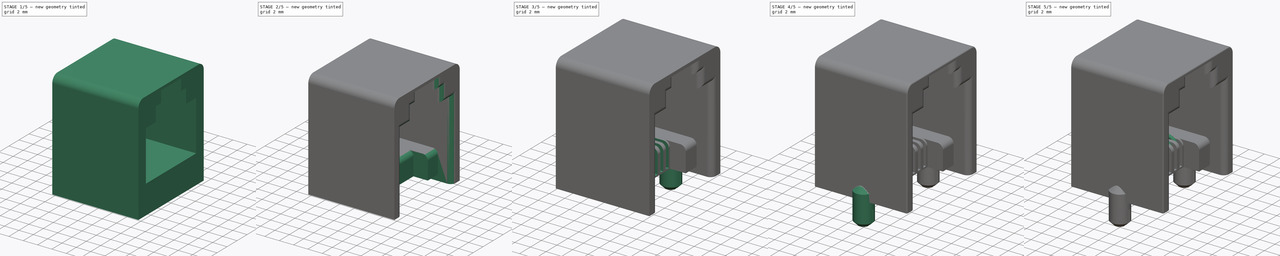
[diagram: build sequence overview — one tinted view per stage of 5, left to right]
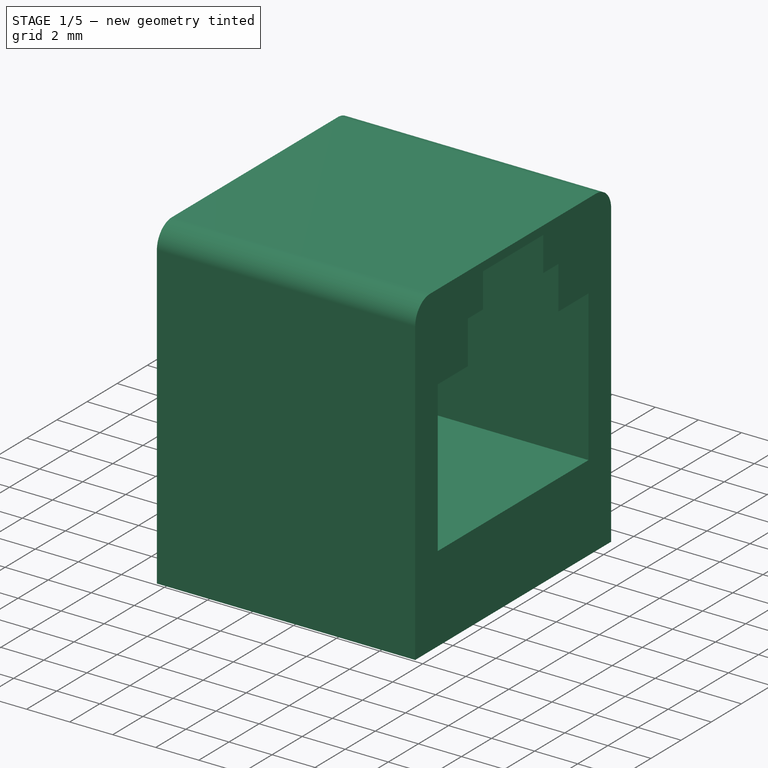
[diagram: stage 1 of 5 — iso view after this stage's code; geometry added in this stage tinted green]
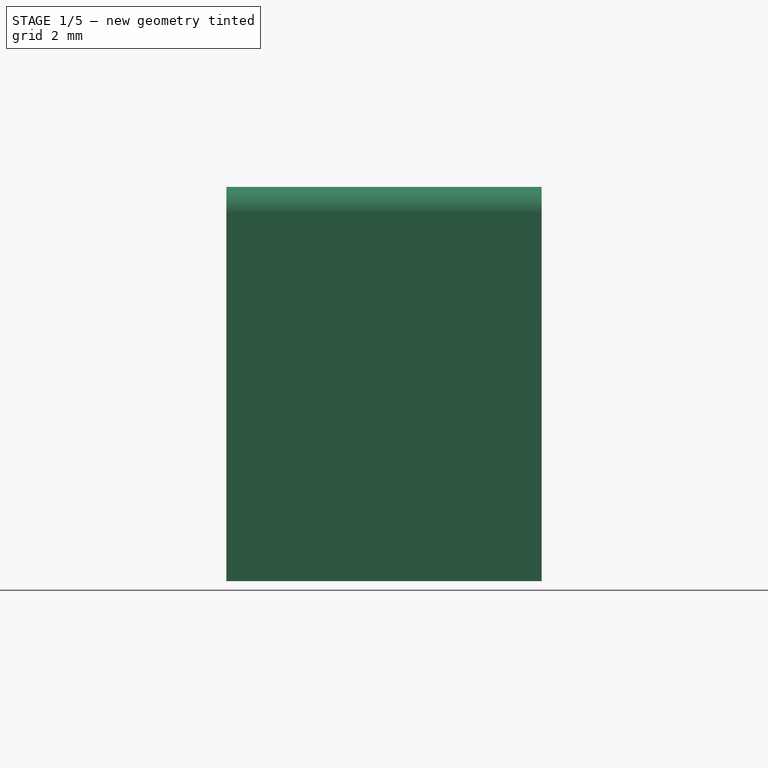
[diagram: stage 1 of 5 — front view after this stage's code; geometry added in this stage tinted green]
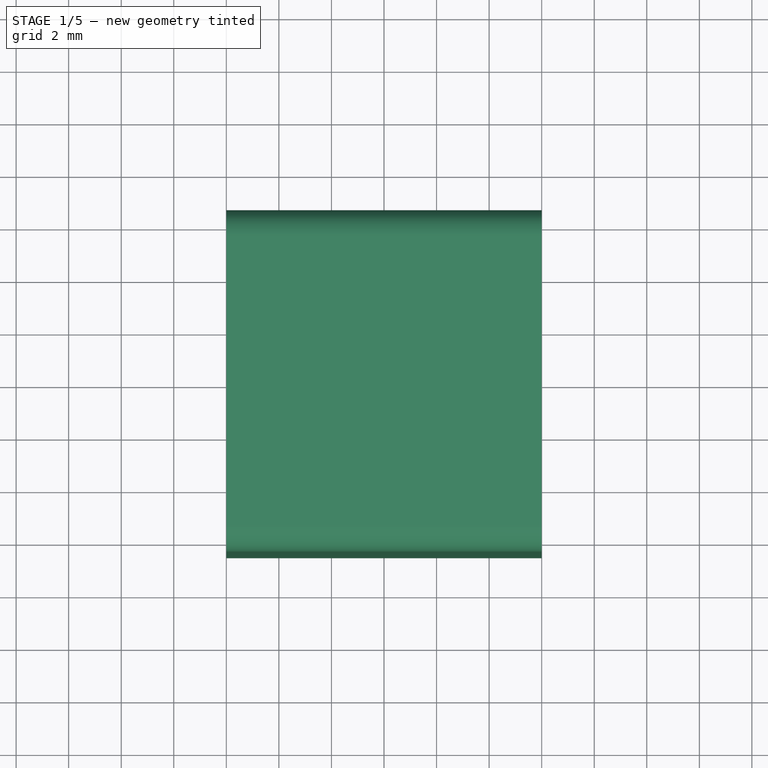
[diagram: stage 1 of 5 — top view after this stage's code; geometry added in this stage tinted green]
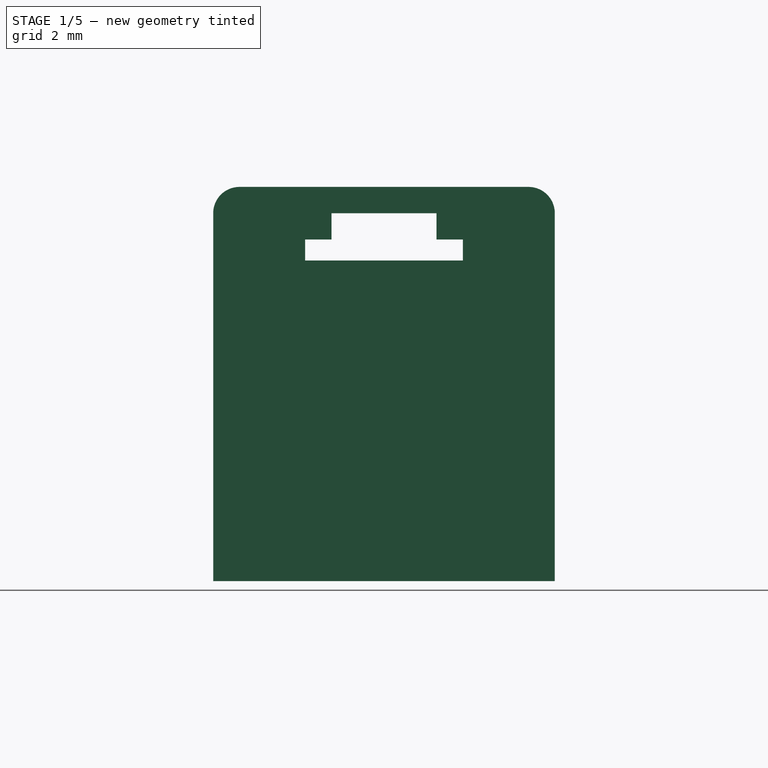
[diagram: stage 1 of 5 — right view after this stage's code; geometry added in this stage tinted green]
FCSTD DOCUMENT  (FreeCAD 0.16R6712 (Git))
Label: rj11
License: All rights reserved
LicenseURL: http://en.wikipedia.org/wiki/All_rights_reserved
objects: Sketcher::SketchObject×9, PartDesign::Pocket×7, Part::FeaturePython×4, Part::Fillet×2, Part::Cylinder×2, Part::Fuse×2, Part::Box×1, Part::Chamfer×1, Part::Sweep×1, PartDesign::Fillet×1
note: 37 computed .brp shape members not serialized (recipe doc carries the construction recipe); baked Part::Feature solids carry a one-line shape summary decoded from their .brp

FEATURE [Part::Box] Box  label="Cubo"
  Height = 15
  Length = 12
  Placement = pos=(-6,-6.5,0) rot=(0,0,1;0rad)
  Width = 13
FEATURE [Part::Fillet] Fillet
  Base = -> Box
  Edges = 2 edges r=1: [Edge10,Edge12]
FEATURE [Sketcher::SketchObject] Sketch001
  ExternalGeometry = -> [Fillet]
  Placement = pos=(6,0,0) rot=(0.57735,0.57735,0.57735;2.0944rad)
  Support = -> Fillet [Face8]
  sketch-geometry (12):
    g0: LineSegment StartX=-5 StartY=4 StartZ=0 EndX=-5 EndY=11 EndZ=0
    g1: LineSegment StartX=-5 StartY=11 StartZ=0 EndX=-3 EndY=11 EndZ=0
    g2: LineSegment StartX=-3 StartY=11 StartZ=0 EndX=-3 EndY=13 EndZ=0
    g3: LineSegment StartX=-3 StartY=13 StartZ=0 EndX=-2 EndY=13 EndZ=0
    g4: LineSegment StartX=-2 StartY=13 StartZ=0 EndX=-2 EndY=14.6 EndZ=0
    g5: LineSegment StartX=-2 StartY=14.6 StartZ=0 EndX=2 EndY=14.6 EndZ=0
    g6: LineSegment StartX=2 StartY=14.6 StartZ=0 EndX=2 EndY=13 EndZ=0
    g7: LineSegment StartX=2 StartY=13 StartZ=0 EndX=3 EndY=13 EndZ=0
    g8: LineSegment StartX=3 StartY=13 StartZ=0 EndX=3 EndY=11 EndZ=0
    g9: LineSegment StartX=3 StartY=11 StartZ=0 EndX=5 EndY=11 EndZ=0
    g10: LineSegment StartX=5 StartY=11 StartZ=0 EndX=5 EndY=4 EndZ=0
    g11: LineSegment StartX=5 StartY=4 StartZ=0 EndX=-5 EndY=4 EndZ=0
  constraints (34):
    c: Vertical(g0)
    c: Coincident(g0,g1)
    c: Horizontal(g1)
    c: Coincident(g1,g2)
    c: Vertical(g2)
    c: Coincident(g2,g3)
    c: Horizontal(g3)
    c: Coincident(g3,g4)
    c: Vertical(g4)
    c: Coincident(g4,g5)
    c: Horizontal(g5)
    c: Coincident(g5,g6)
    c: Vertical(g6)
    c: Coincident(g6,g7)
    c: Horizontal(g7)
    c: Coincident(g7,g8)
    c: Vertical(g8)
    c: Coincident(g8,g9)
    c: Horizontal(g9)
    c: Coincident(g9,g10)
    c: Vertical(g10)
    c: Coincident(g10,g11)
    c: Coincident(g11,g0)
    c: Horizontal(g11)
    c: Symmetric(g3,g6,g-2)
    c: Symmetric(g1,g8,g-2)
    c: Symmetric(g0,g10,g-2)
    c: DistanceX(g5,g5) = 4
    c: DistanceY(g5,g-3) = 0.4
    c: DistanceY(g6,g-3) = 2
    c: DistanceX(g2,g7) = 6
    c: DistanceY(g8,g-3) = 4
    c: DistanceX(g11,g11) = 10
    c: DistanceY(g10,g-3) = 11
FEATURE [PartDesign::Pocket] Pocket001
  Length = 11
  Sketch = -> Sketch001
  Type = 0
FEATURE [Sketcher::SketchObject] Sketch002
  ExternalGeometry = -> [Pocket001]
  Placement = pos=(-6,0,0) rot=(0.57735,-0.57735,-0.57735;2.0944rad)
  Support = -> Pocket001 [Face1]
  sketch-geometry (4):
    g0: LineSegment StartX=-5 StartY=14 StartZ=0 EndX=5 EndY=14 EndZ=0
    g1: LineSegment StartX=5 StartY=14 StartZ=0 EndX=5 EndY=12.2 EndZ=0
    g2: LineSegment StartX=5 StartY=12.2 StartZ=0 EndX=-5 EndY=12.2 EndZ=0
    g3: LineSegment StartX=-5 StartY=12.2 StartZ=0 EndX=-5 EndY=14 EndZ=0
  constraints (12):
    c: Coincident(g0,g1)
    c: Coincident(g1,g2)
    c: Coincident(g2,g3)
    c: Coincident(g3,g0)
    c: Horizontal(g0)
    c: Horizontal(g2)
    c: Vertical(g1)
    c: Vertical(g3)
    c: DistanceY(g0,g-3) = 1
    c: DistanceY(g1,g1) = 1.8
    c: Symmetric(g2,g1,g-2)
    c: DistanceX(g0,g0) = 10
FEATURE [PartDesign::Pocket] Pocket002
  Length = 9
  Sketch = -> Sketch002
  Type = 0
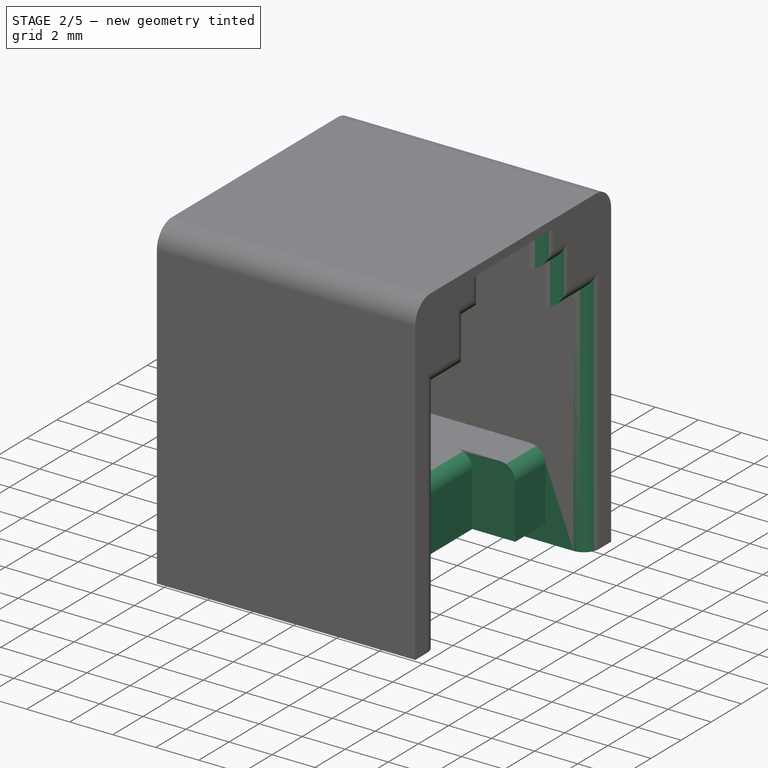
[diagram: stage 2 of 5 — iso view after this stage's code; geometry added in this stage tinted green]
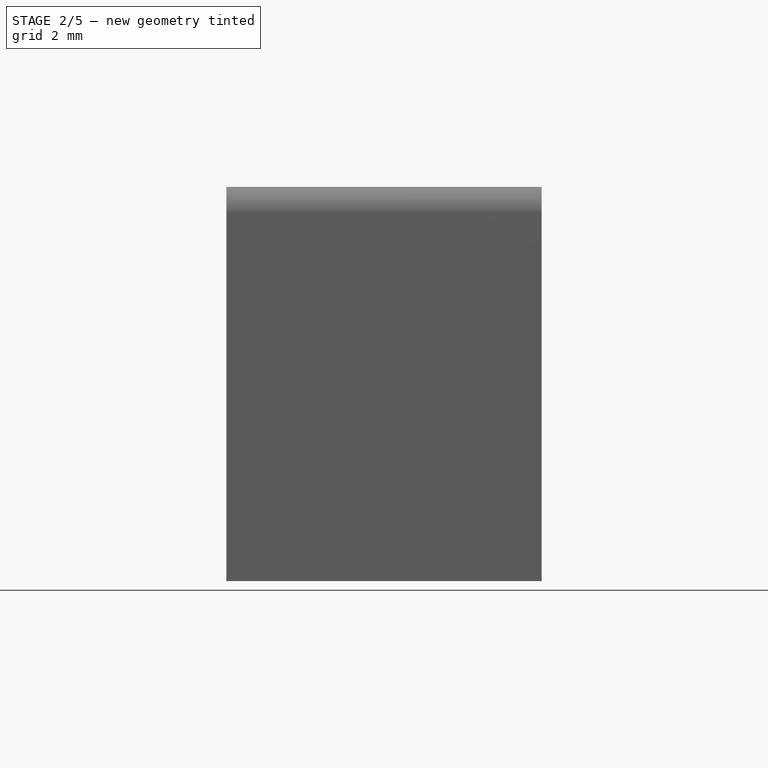
[diagram: stage 2 of 5 — front view after this stage's code; geometry added in this stage tinted green]
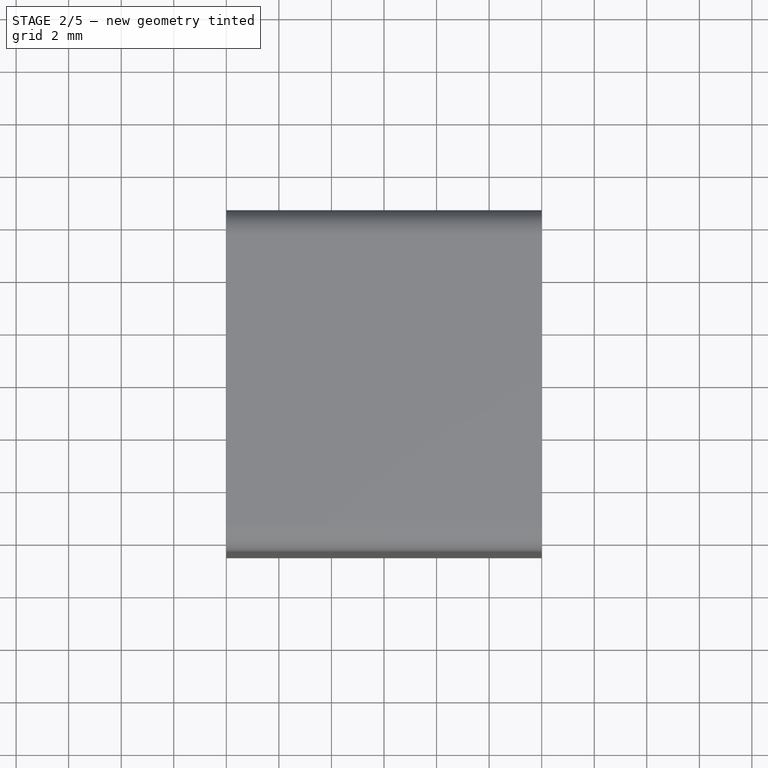
[diagram: stage 2 of 5 — top view after this stage's code; geometry added in this stage tinted green]
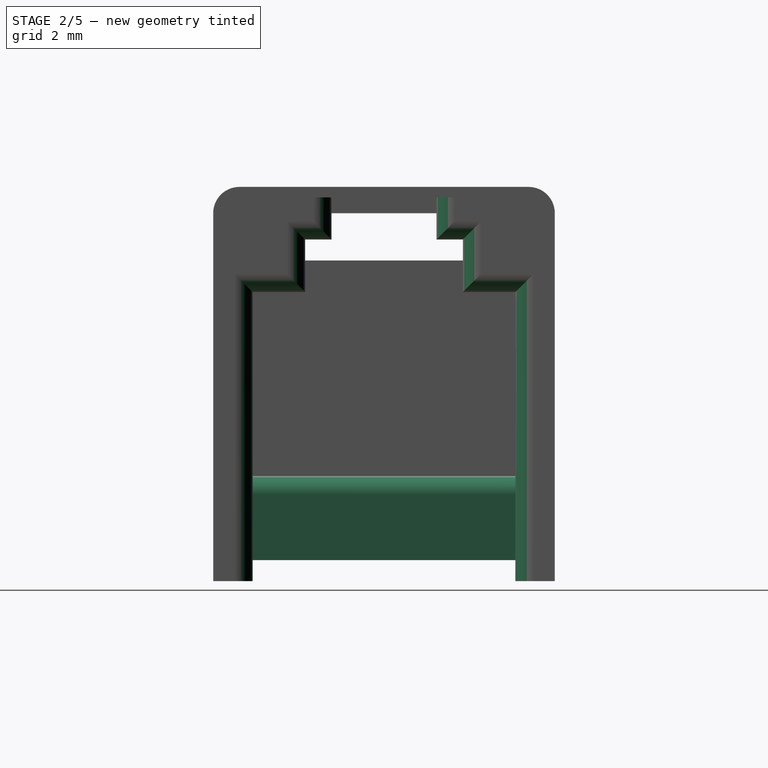
[diagram: stage 2 of 5 — right view after this stage's code; geometry added in this stage tinted green]
FEATURE [Sketcher::SketchObject] Sketch003
  ExternalGeometry = -> [Pocket002]
  Placement = pos=(6,0,0) rot=(0.57735,0.57735,0.57735;2.0944rad)
  Support = -> Pocket002 [Face12]
  sketch-geometry (4):
    g0: LineSegment StartX=-5 StartY=0 StartZ=0 EndX=5 EndY=0 EndZ=0
    g1: LineSegment StartX=5 StartY=0 StartZ=0 EndX=5 EndY=4 EndZ=0
    g2: LineSegment StartX=5 StartY=4 StartZ=0 EndX=-5 EndY=4 EndZ=0
    g3: LineSegment StartX=-5 StartY=4 StartZ=0 EndX=-5 EndY=0 EndZ=0
  constraints (11):
    c: Coincident(g0,g1)
    c: Coincident(g1,g2)
    c: Coincident(g2,g3)
    c: Coincident(g3,g0)
    c: Horizontal(g0)
    c: Horizontal(g2)
    c: Vertical(g1)
    c: Vertical(g3)
    c: PointOnObject(g0,g-1)
    c: Coincident(g1,g-3)
    c: Coincident(g2,g-3)
FEATURE [PartDesign::Pocket] Pocket003
  Length = 2
  Sketch = -> Sketch003
  Type = 0
FEATURE [Sketcher::SketchObject] Sketch004
  ExternalGeometry = -> [Pocket003]
  Placement = pos=(4,0,0) rot=(0.57735,0.57735,0.57735;2.0944rad)
  Support = -> Pocket003 [Face13]
  sketch-geometry (4):
    g0: LineSegment StartX=-3 StartY=4 StartZ=0 EndX=3 EndY=4 EndZ=0
    g1: LineSegment StartX=3 StartY=4 StartZ=0 EndX=3 EndY=0 EndZ=0
    g2: LineSegment StartX=3 StartY=0 StartZ=0 EndX=-3 EndY=0 EndZ=0
    g3: LineSegment StartX=-3 StartY=0 StartZ=0 EndX=-3 EndY=4 EndZ=0
  constraints (12):
    c: Coincident(g0,g1)
    c: Coincident(g1,g2)
    c: Coincident(g2,g3)
    c: Coincident(g3,g0)
    c: Horizontal(g0)
    c: Horizontal(g2)
    c: Vertical(g1)
    c: Vertical(g3)
    c: PointOnObject(g0,g-3)
    c: PointOnObject(g1,g-1)
    c: DistanceX(g2,g2) = 6
    c: Symmetric(g2,g1,g-2)
FEATURE [PartDesign::Pocket] Pocket004
  Length = 2
  Sketch = -> Sketch004
  Type = 0
FEATURE [Part::Fillet] Fillet001
  Base = -> Pocket004
  Edges = 13 edges r=0.7: [Edge47,Edge48,Edge49,Edge50,Edge51,Edge53,Edge54,Edge55,Edge56,Edge57,Edge62,Edge66,Edge70]
FEATURE [Sketcher::SketchObject] Sketch005
  ExternalGeometry = -> [Fillet001]
  Placement = pos=(4,0,0) rot=(0.57735,0.57735,0.57735;2.0944rad)
  Support = -> Fillet001 [Face14]
  sketch-geometry (4):
    g0: LineSegment StartX=-5 StartY=0 StartZ=0 EndX=5 EndY=0 EndZ=0
    g1: LineSegment StartX=5 StartY=0 StartZ=0 EndX=5 EndY=0.8 EndZ=0
    g2: LineSegment StartX=5 StartY=0.8 StartZ=0 EndX=-5 EndY=0.8 EndZ=0
    g3: LineSegment StartX=-5 StartY=0.8 StartZ=0 EndX=-5 EndY=0 EndZ=0
  constraints (11):
    c: Coincident(g0,g1)
    c: Coincident(g1,g2)
    c: Coincident(g2,g3)
    c: Coincident(g3,g0)
    c: Horizontal(g0)
    c: Horizontal(g2)
    c: Vertical(g1)
    c: Vertical(g3)
    c: Coincident(g0,g-3)
    c: PointOnObject(g1,g-4)
    c: DistanceY(g0,g1) = 0.8
FEATURE [PartDesign::Pocket] Pocket005
  Length = 5
  Sketch = -> Sketch005
  Type = 1
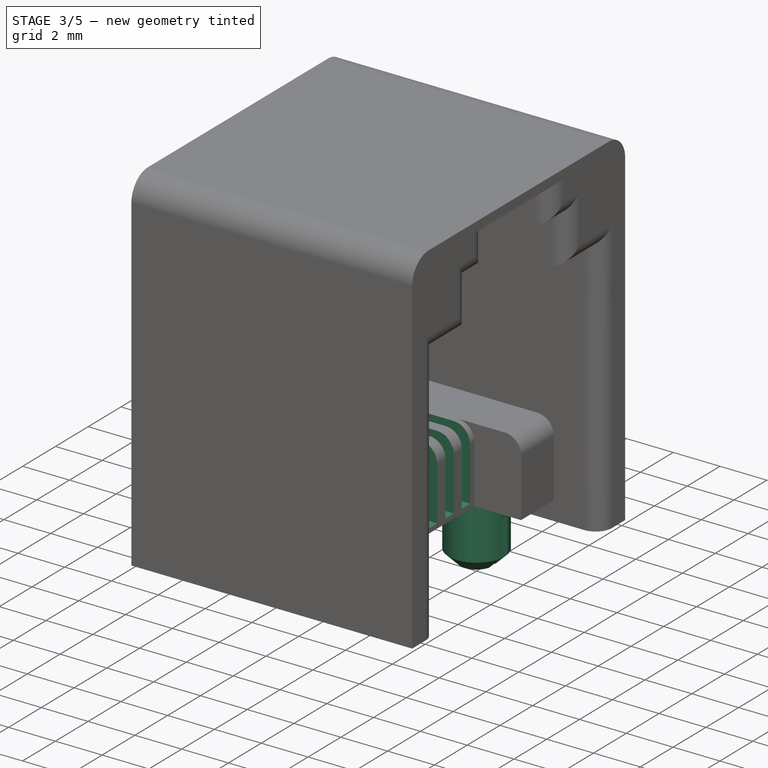
[diagram: stage 3 of 5 — iso view after this stage's code; geometry added in this stage tinted green]
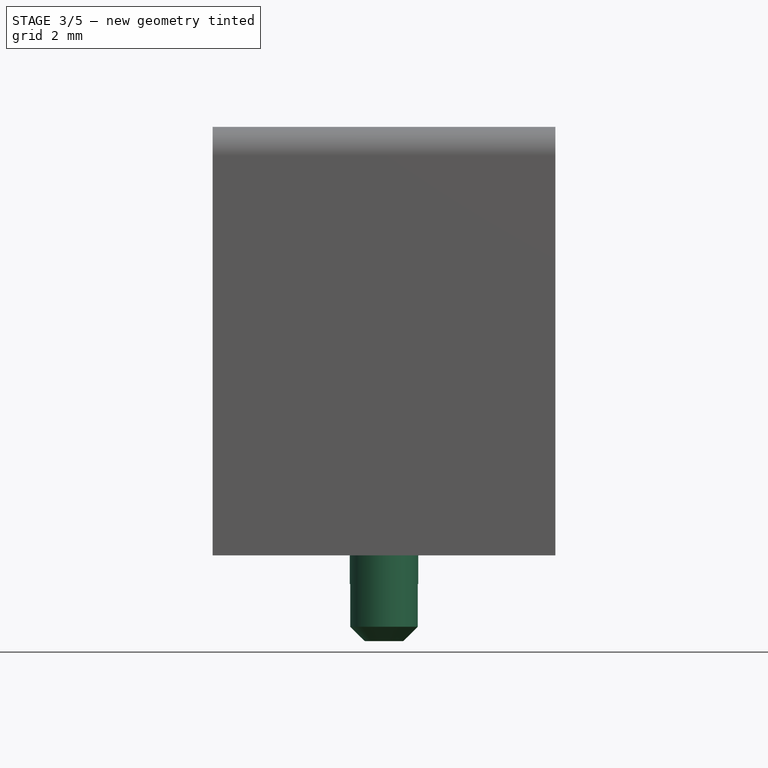
[diagram: stage 3 of 5 — front view after this stage's code; geometry added in this stage tinted green]
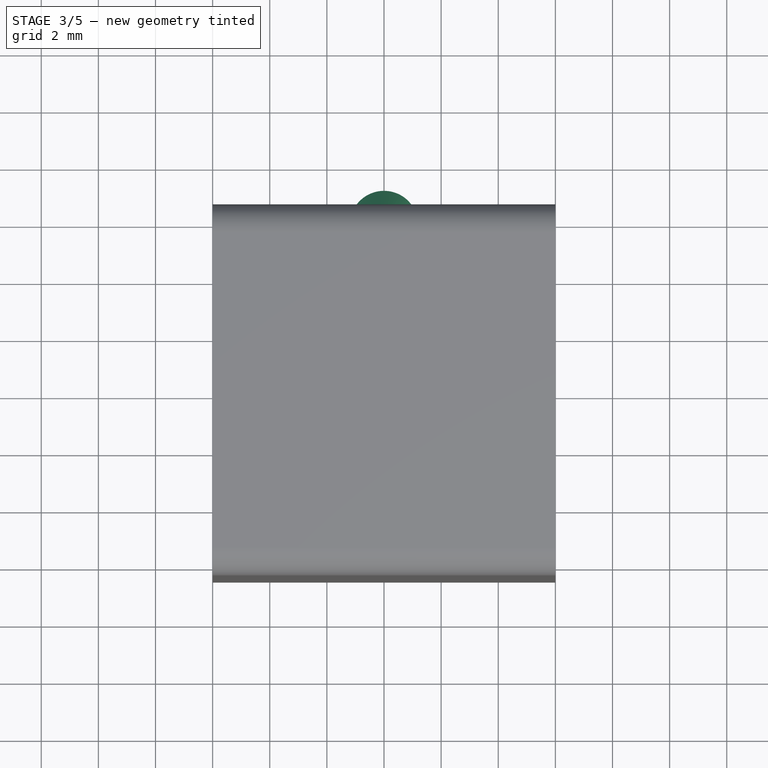
[diagram: stage 3 of 5 — top view after this stage's code; geometry added in this stage tinted green]
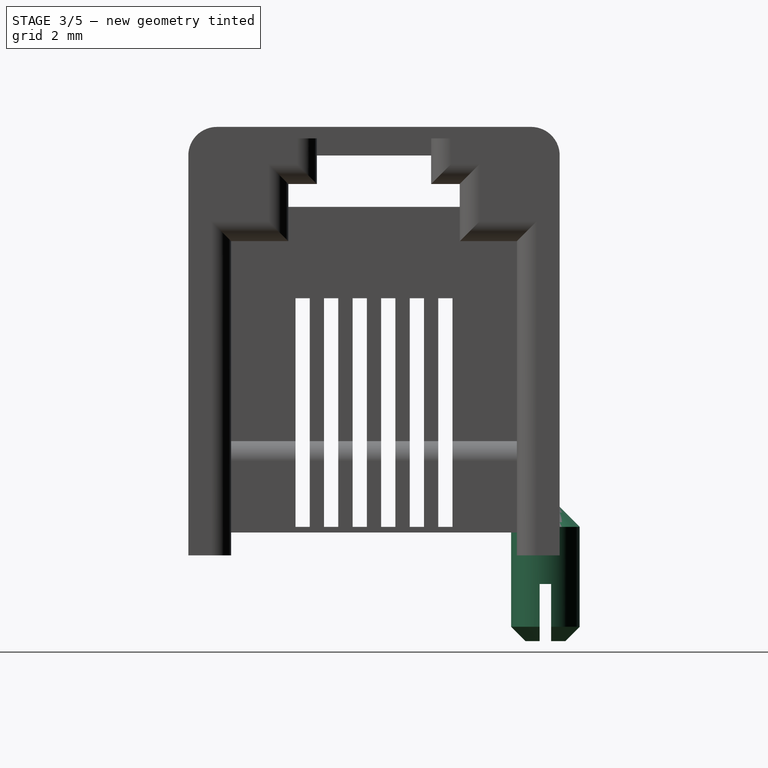
[diagram: stage 3 of 5 — right view after this stage's code; geometry added in this stage tinted green]
FEATURE [Part::Cylinder] Cylinder  label="Cilindro"
  Angle = 360
  Height = 5
  Placement = pos=(0,-6,-3) rot=(0,0,1;0rad)
  Radius = 1.2
FEATURE [Part::Chamfer] Chamfer
  Base = -> Cylinder
  Edges = 2 edges: [Edge1 r=1,Edge3 r=0.5]
FEATURE [Sketcher::SketchObject] Sketch
  ExternalGeometry = -> [Chamfer]
  Placement = pos=(0,0,-3) rot=(1,0,0;3.14159rad)
  Support = -> Chamfer [Face4]
  sketch-geometry (4):
    g0: ArcOfCircle CenterX=-2 CenterY=6 CenterZ=0 NormalX=0 NormalY=0 NormalZ=1 Radius=0.2 StartAngle=1.5708 EndAngle=4.71239
    g1: ArcOfCircle CenterX=2 CenterY=6 CenterZ=0 NormalX=0 NormalY=0 NormalZ=1 Radius=0.2 StartAngle=4.71239 EndAngle=7.85398
    g2: LineSegment StartX=-2 StartY=5.8 StartZ=0 EndX=2 EndY=5.8 EndZ=0
    g3: LineSegment StartX=-2 StartY=6.2 StartZ=0 EndX=2 EndY=6.2 EndZ=0
  constraints (9):
    c: Tangent(g0,g3) = 1.5708
    c: Tangent(g0,g2) = -1.5708
    c: Tangent(g2,g1) = -1.5708
    c: Tangent(g3,g1) = 1.5708
    c: Horizontal(g2)
    c: Equal(g0,g1)
    c: Symmetric(g0,g1,g-3)
    c: Radius(g0) = 0.2
    c: DistanceX(g3,g3) = 4
FEATURE [PartDesign::Pocket] Pocket
  Length = 2
  Sketch = -> Sketch
  Type = 0
FEATURE [Part::FeaturePython] Clone  label="Clone of Pocket"  # Draft clone (typed FeaturePython)
  Objects = -> [Pocket]
  Placement = pos=(0,12,0) rot=(0,0,1;0rad)
  Scale = (1,1,1)
FEATURE [Sketcher::SketchObject] Sketch006
  ExternalGeometry = -> [Pocket005]
  Placement = pos=(-6,0,0) rot=(0.57735,-0.57735,-0.57735;2.0944rad)
  Support = -> Pocket005 [Face6]
  sketch-geometry (29):
    g0: LineSegment StartX=-2.75 StartY=9 StartZ=0 EndX=-2.25 EndY=9 EndZ=0
    g1: LineSegment StartX=-2.25 StartY=9 StartZ=0 EndX=-2.25 EndY=1 EndZ=0
    g2: LineSegment StartX=-2.25 StartY=1 StartZ=0 EndX=-2.75 EndY=1 EndZ=0
    g3: LineSegment StartX=-2.75 StartY=1 StartZ=0 EndX=-2.75 EndY=9 EndZ=0
    g4: LineSegment StartX=-1.75 StartY=9 StartZ=0 EndX=-1.25 EndY=9 EndZ=0
    g5: LineSegment StartX=-1.25 StartY=9 StartZ=0 EndX=-1.25 EndY=1 EndZ=0
    g6: LineSegment StartX=-1.25 StartY=1 StartZ=0 EndX=-1.75 EndY=1 EndZ=0
    g7: LineSegment StartX=-1.75 StartY=1 StartZ=0 EndX=-1.75 EndY=9 EndZ=0
    g8: LineSegment StartX=-0.75 StartY=9 StartZ=0 EndX=-0.25 EndY=9 EndZ=0
    g9: LineSegment StartX=-0.25 StartY=9 StartZ=0 EndX=-0.25 EndY=1 EndZ=0
    g10: LineSegment StartX=-0.25 StartY=1 StartZ=0 EndX=-0.75 EndY=1 EndZ=0
    g11: LineSegment StartX=-0.75 StartY=1 StartZ=0 EndX=-0.75 EndY=9 EndZ=0
    g12: LineSegment StartX=0.25 StartY=9 StartZ=0 EndX=0.75 EndY=9 EndZ=0
    g13: LineSegment StartX=0.75 StartY=9 StartZ=0 EndX=0.75 EndY=1 EndZ=0
    g14: LineSegment StartX=0.75 StartY=1 StartZ=0 EndX=0.25 EndY=1 EndZ=0
    g15: LineSegment StartX=0.25 StartY=1 StartZ=0 EndX=0.25 EndY=9 EndZ=0
    g16: LineSegment StartX=1.25 StartY=9 StartZ=0 EndX=1.75 EndY=9 EndZ=0
    g17: LineSegment StartX=1.75 StartY=9 StartZ=0 EndX=1.75 EndY=1 EndZ=0
    g18: LineSegment StartX=1.75 StartY=1 StartZ=0 EndX=1.25 EndY=1 EndZ=0
    g19: LineSegment StartX=1.25 StartY=1 StartZ=0 EndX=1.25 EndY=9 EndZ=0
    g20: LineSegment StartX=2.25 StartY=9 StartZ=0 EndX=2.75 EndY=9 EndZ=0
    g21: LineSegment StartX=2.75 StartY=9 StartZ=0 EndX=2.75 EndY=1 EndZ=0
    g22: LineSegment StartX=2.75 StartY=1 StartZ=0 EndX=2.25 EndY=1 EndZ=0
    g23: LineSegment StartX=2.25 StartY=1 StartZ=0 EndX=2.25 EndY=9 EndZ=0
    g24: LineSegment [constr] StartX=-2.25 StartY=9 StartZ=0 EndX=-1.75 EndY=9 EndZ=0
    g25: LineSegment [constr] StartX=-1.25 StartY=9 StartZ=0 EndX=-0.75 EndY=9 EndZ=0
    g26: LineSegment [constr] StartX=-0.25 StartY=9 StartZ=0 EndX=0.25 EndY=9 EndZ=0
    g27: LineSegment [constr] StartX=0.75 StartY=9 StartZ=0 EndX=1.25 EndY=9 EndZ=0
    g28: LineSegment [constr] StartX=1.75 StartY=9 StartZ=0 EndX=2.25 EndY=9 EndZ=0
  constraints (82):
    c: Coincident(g0,g1)
    c: Coincident(g1,g2)
    c: Coincident(g2,g3)
    c: Coincident(g3,g0)
    c: Horizontal(g0)
    c: Horizontal(g2)
    c: Vertical(g1)
    c: Vertical(g3)
    c: Coincident(g4,g5)
    c: Coincident(g5,g6)
    c: Coincident(g6,g7)
    c: Coincident(g7,g4)
    c: Horizontal(g4)
    c: Horizontal(g6)
    c: Vertical(g5)
    c: Vertical(g7)
    c: Coincident(g8,g9)
    c: Coincident(g9,g10)
    c: Coincident(g10,g11)
    c: Coincident(g11,g8)
    c: Horizontal(g8)
    c: Horizontal(g10)
    c: Vertical(g9)
    c: Vertical(g11)
    c: Coincident(g12,g13)
    c: Coincident(g13,g14)
    c: Coincident(g14,g15)
    c: Coincident(g15,g12)
    c: Horizontal(g12)
    c: Horizontal(g14)
    c: Vertical(g13)
    c: Vertical(g15)
    c: Coincident(g16,g17)
    c: Coincident(g17,g18)
    c: Coincident(g18,g19)
    c: Coincident(g19,g16)
    c: Horizontal(g16)
    c: Horizontal(g18)
    c: Vertical(g17)
    c: Vertical(g19)
    c: Coincident(g20,g21)
    c: Coincident(g21,g22)
    c: Coincident(g22,g23)
    c: Coincident(g23,g20)
    c: Horizontal(g20)
    c: Horizontal(g22)
    c: Vertical(g21)
    c: Vertical(g23)
    c: Coincident(g24,g0)
    c: Coincident(g24,g4)
    c: Horizontal(g24)
    c: Coincident(g25,g4)
    c: Coincident(g25,g8)
    c: Horizontal(g25)
    c: Coincident(g26,g8)
    c: Coincident(g26,g12)
    c: Horizontal(g26)
    c: Coincident(g27,g12)
    c: Coincident(g27,g16)
    c: Coincident(g28,g16)
    c: Coincident(g28,g20)
    c: Horizontal(g28)
    c: Horizontal(g27)
    c: DistanceX(g0,g0) = 0.5
    c: Equal(g0,g24)
    c: Equal(g24,g4)
    c: Equal(g4,g25)
    c: Equal(g25,g8)
    c: Equal(g8,g26)
    c: Equal(g26,g12)
    c: Equal(g12,g27)
    c: Equal(g27,g16)
    c: Equal(g16,g28)
    c: Equal(g28,g20)
    c: Equal(g1,g5)
    c: Equal(g5,g9)
    c: Equal(g9,g13)
    c: Equal(g13,g17)
    c: Equal(g17,g21)
    c: Symmetric(g8,g12,g-2)
    c: DistanceY(g0,g-4) = 6
    c: DistanceY(g3,g3) = 8
FEATURE [PartDesign::Pocket] Pocket006
  Length = 5
  Sketch = -> Sketch006
  Type = 1
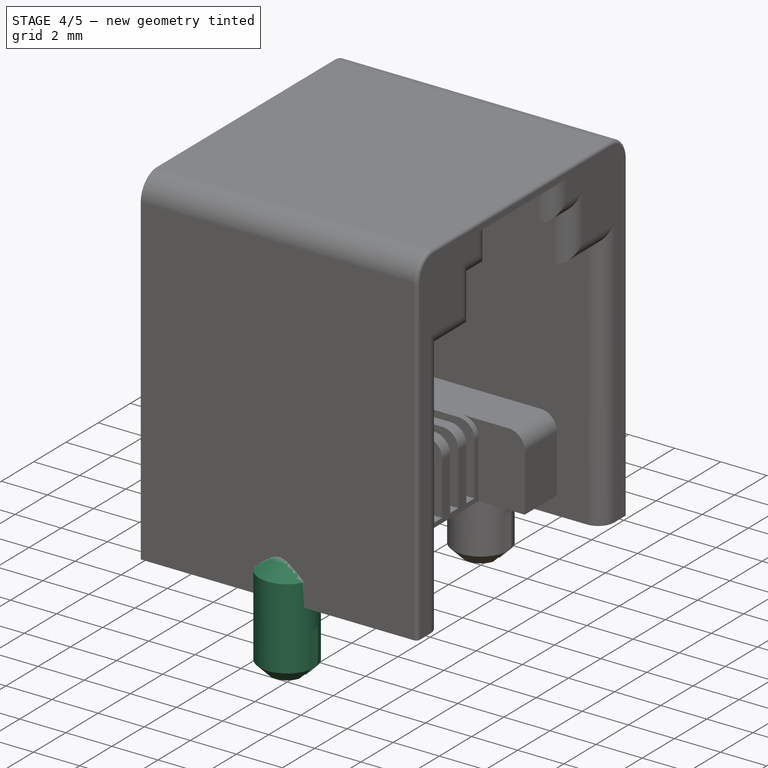
[diagram: stage 4 of 5 — iso view after this stage's code; geometry added in this stage tinted green]
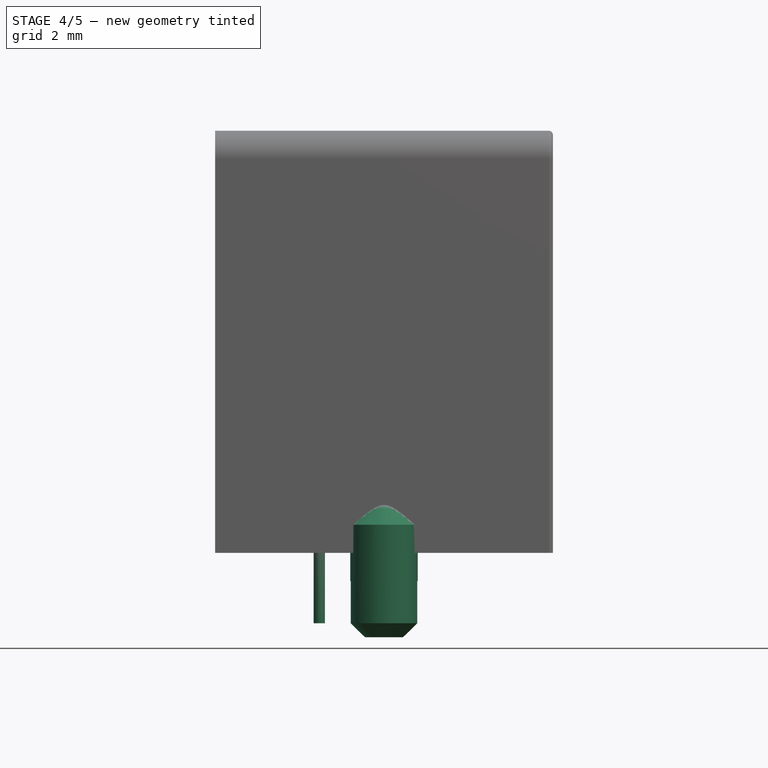
[diagram: stage 4 of 5 — front view after this stage's code; geometry added in this stage tinted green]
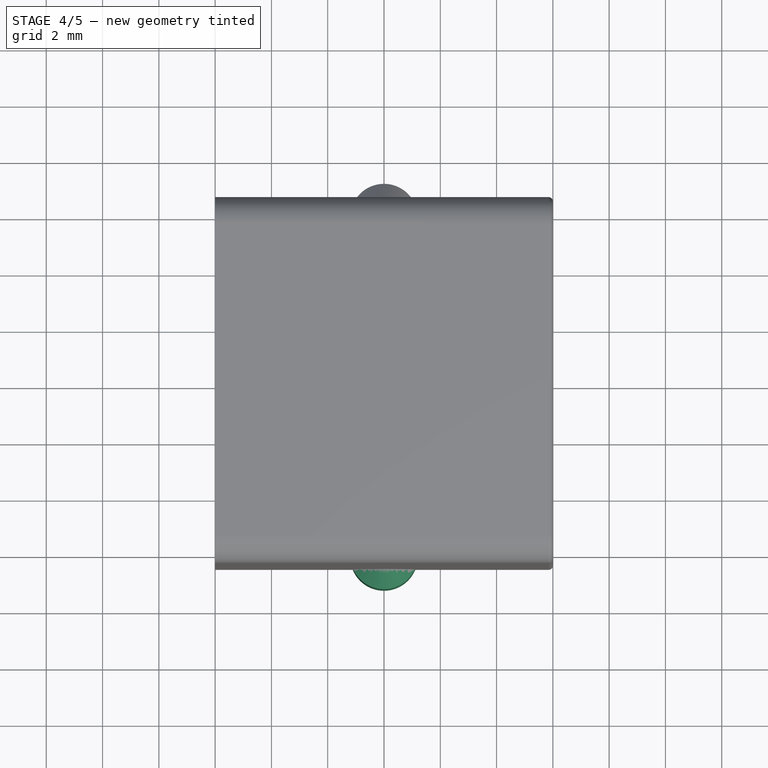
[diagram: stage 4 of 5 — top view after this stage's code; geometry added in this stage tinted green]
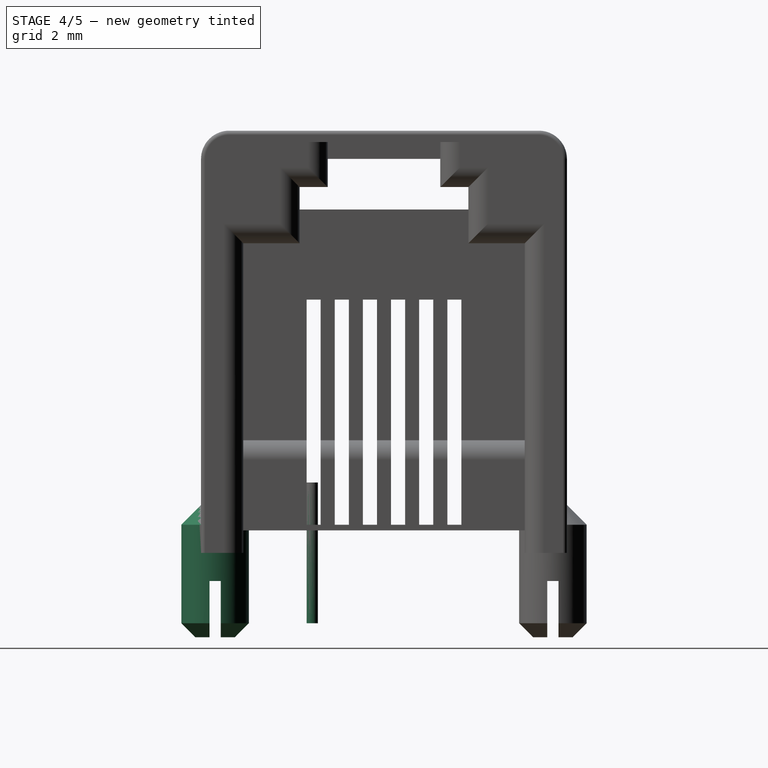
[diagram: stage 4 of 5 — right view after this stage's code; geometry added in this stage tinted green]
FEATURE [Part::Fuse] Fusion  label="pines"
  Base = -> Pocket
  Tool = -> Clone
FEATURE [Part::Fuse] Fusion001
  Base = -> Fusion
  Tool = -> Pocket006
FEATURE [Part::Cylinder] Cylinder001  label="Cilindro001"
  Angle = 360
  Height = 5
  Placement = pos=(-2.3,-2.55,-2.5) rot=(0,0,1;0rad)
  Radius = 0.2
FEATURE [PartDesign::Fillet] Fillet002
  Base = -> Fusion001 [Edge191,Edge189,Edge187,Edge185,Edge183]
  Radius = 0.15
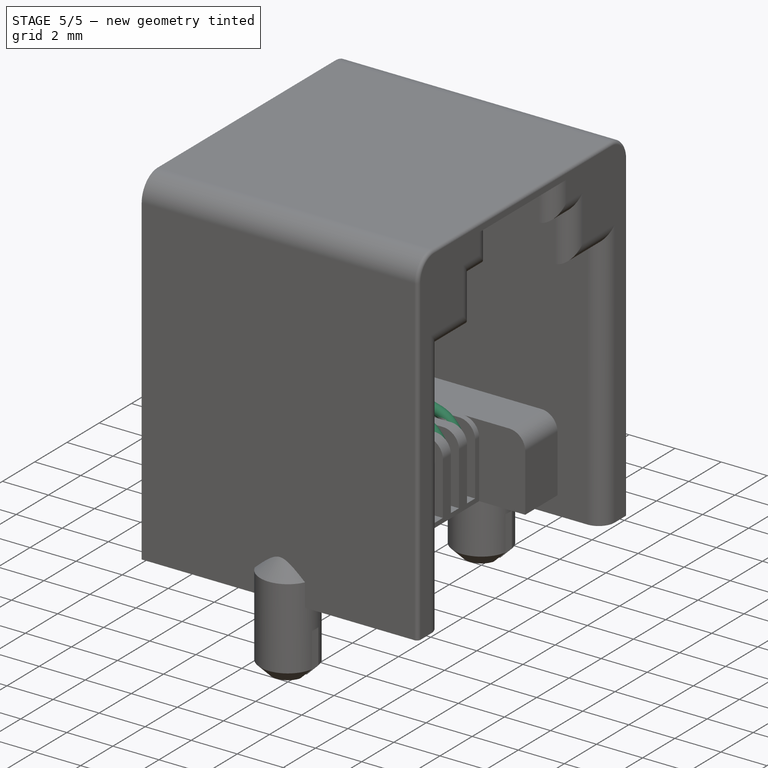
[diagram: stage 5 of 5 — iso view after this stage's code; geometry added in this stage tinted green]
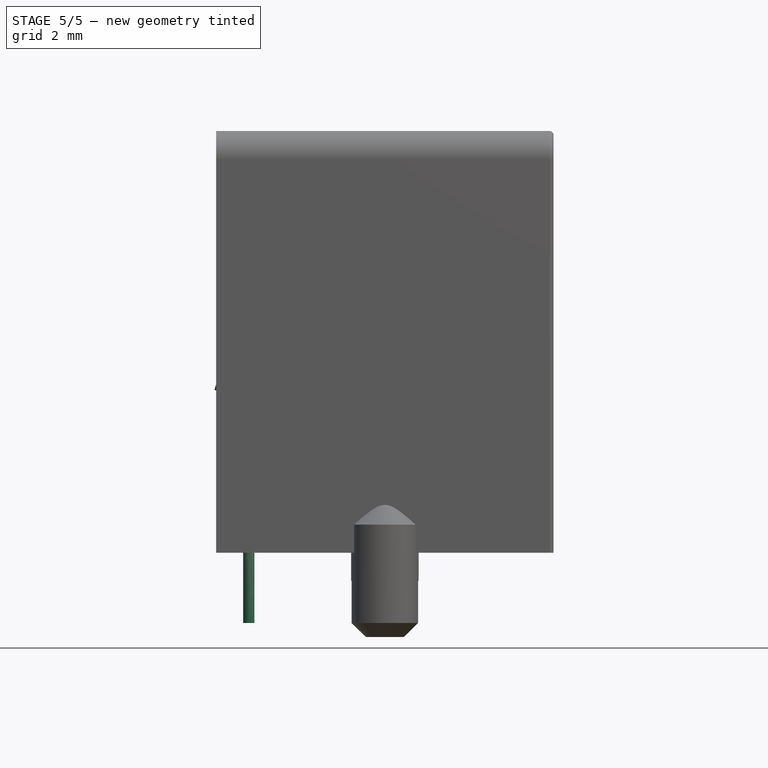
[diagram: stage 5 of 5 — front view after this stage's code; geometry added in this stage tinted green]
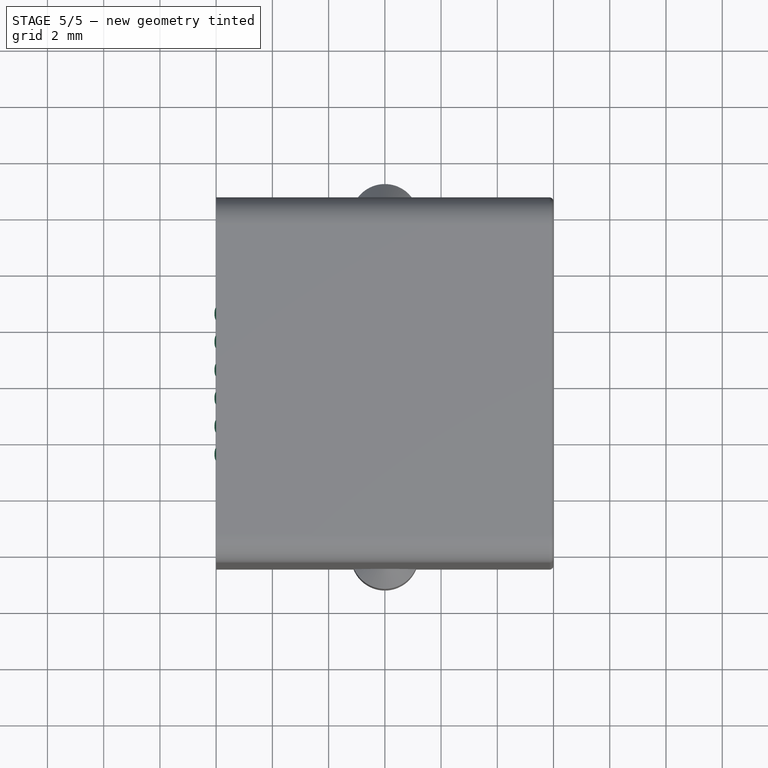
[diagram: stage 5 of 5 — top view after this stage's code; geometry added in this stage tinted green]
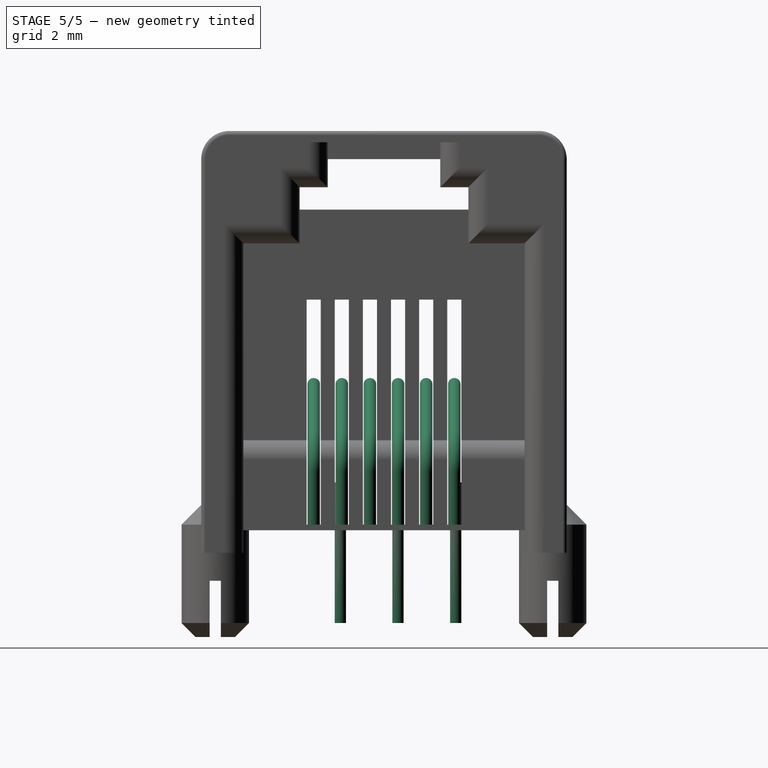
[diagram: stage 5 of 5 — right view after this stage's code; geometry added in this stage tinted green]
FEATURE [Sketcher::SketchObject] Sketch007
  Placement = pos=(0,-2.5,0) rot=(1,0,0;1.5708rad)
  sketch-geometry (3):
    g0: LineSegment StartX=-6 StartY=6 StartZ=0 EndX=0.55301 EndY=4.15115 EndZ=0
    g1: LineSegment StartX=1.5 StartY=0.9 StartZ=0 EndX=1.5 EndY=2.9 EndZ=0
    g2: ArcOfCircle CenterX=0.2 CenterY=2.9 CenterZ=0 NormalX=0 NormalY=0 NormalZ=1 Radius=1.3 StartAngle=1.47425e-07 EndAngle=1.2958
  constraints (11):
    c: Vertical(g1)
    c: DistanceX(g0,g-1) = 6
    c: DistanceY(g-1,g0) = 6
    c: Coincident(g2,g0)
    c: Coincident(g2,g1)
    c: Tangent(g0,g2)
    c: Radius(g2) = 1.3
    c: Tangent(g1,g2)
    c: DistanceY(g1,g1) = 2
    c: DistanceY(g-1,g1) = 0.9
    c: DistanceX(g-1,g1) = 1.5
FEATURE [Sketcher::SketchObject] Sketch008
  Placement = pos=(0,0,0.9) rot=(0,0,1;0rad)
  sketch-geometry (1):
    g0: Circle CenterX=1.5 CenterY=-2.5 CenterZ=0 NormalX=0 NormalY=0 NormalZ=1 Radius=0.22
  constraints (3):
    c: Radius(g0) = 0.22
    c: DistanceX(g-1,g0) = 1.5
    c: DistanceY(g0,g-1) = 2.5
FEATURE [Part::Sweep] Sweep  label="cable"
  Frenet = false
  Sections = -> [Sketch008]
  Solid = true
  Spine = -> Sketch007 [Edge3,Edge2,Edge1]
  Transition = 1
FEATURE [Part::FeaturePython] Array  label="Array_cables_interiores"  # Draft array (typed FeaturePython)
  Angle = 360
  ArrayType = 0
  Axis = (0,0,1)
  Base = -> Sweep
  Center = (0,0,0)
  Fuse = false
  IntervalAxis = (0,0,0)
  IntervalX = (1,0,0)
  IntervalY = (0,1,0)
  IntervalZ = (0,0,0)
  NumberPolar = 1
  NumberX = 1
  NumberY = 6
  NumberZ = 1
FEATURE [Part::FeaturePython] Array001  # Draft array (typed FeaturePython)
  Angle = 360
  ArrayType = 0
  Axis = (0,0,1)
  Base = -> Cylinder001
  Center = (0,0,0)
  Fuse = false
  IntervalAxis = (0,0,0)
  IntervalX = (1,0,0)
  IntervalY = (0,2.05,0)
  IntervalZ = (0,0,0)
  NumberPolar = 1
  NumberX = 1
  NumberY = 3
  NumberZ = 1
FEATURE [Part::FeaturePython] Clone001  label="Clone of Array001"  # Draft clone (typed FeaturePython)
  Objects = -> [Array001]
  Placement = pos=(-2.54,1,0) rot=(0,0,1;0rad)
  Scale = (1,1,1)
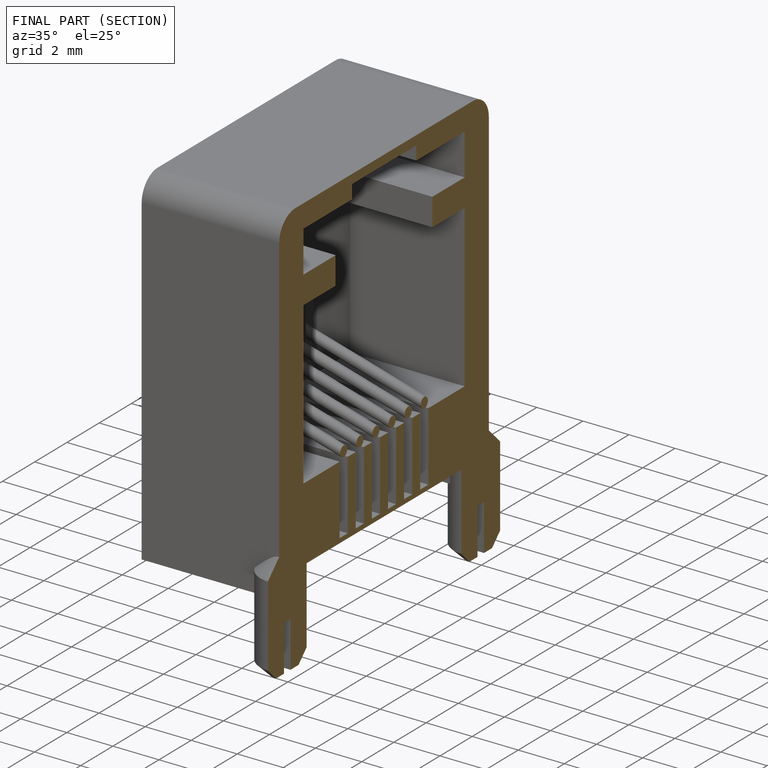
[diagram: finished part — half-section view (interior)]
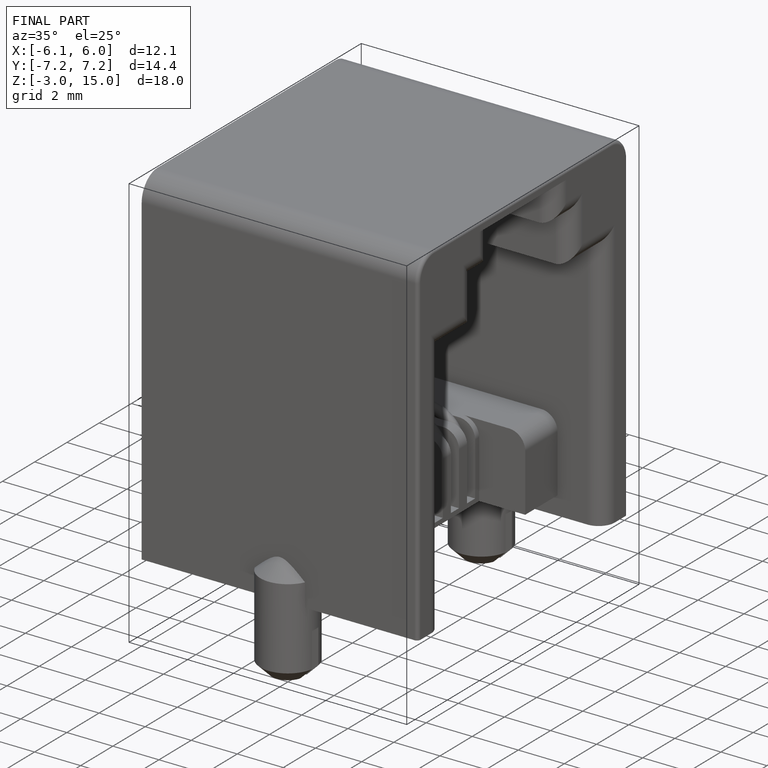
[diagram: finished part — iso view with bounding-box wireframe]
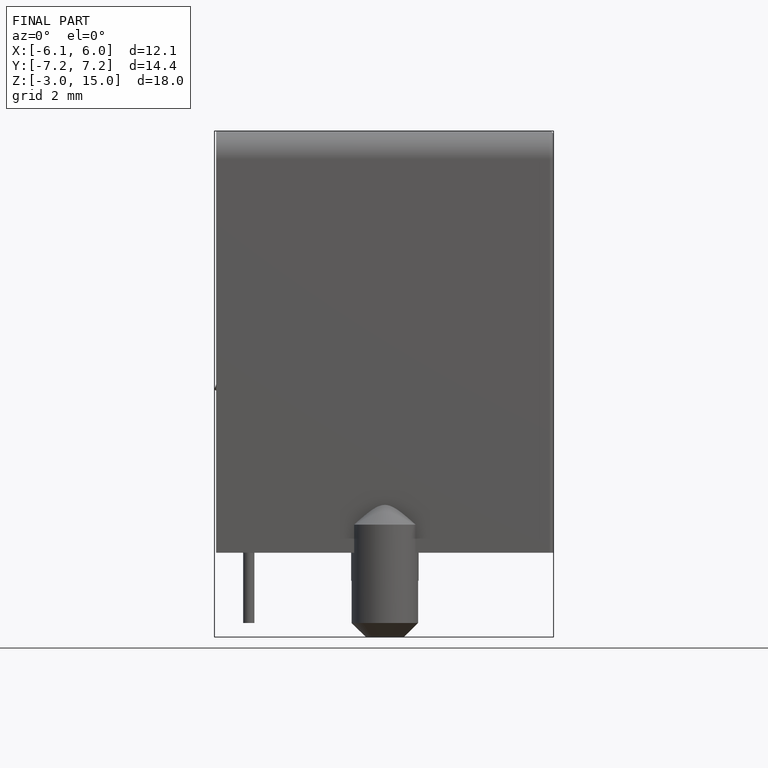
[diagram: finished part — front view with bounding-box wireframe]
